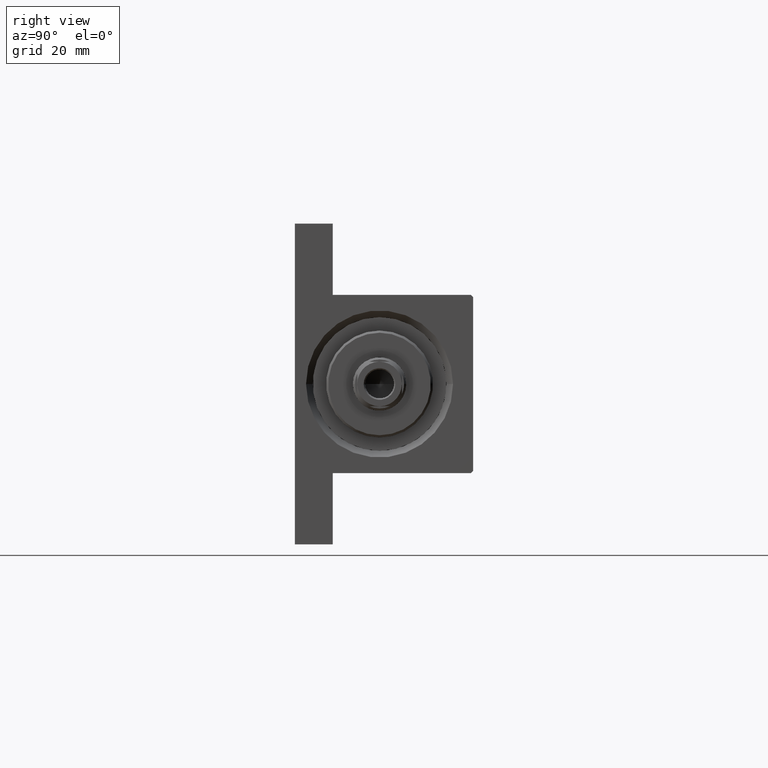
[diagram: clean part render]
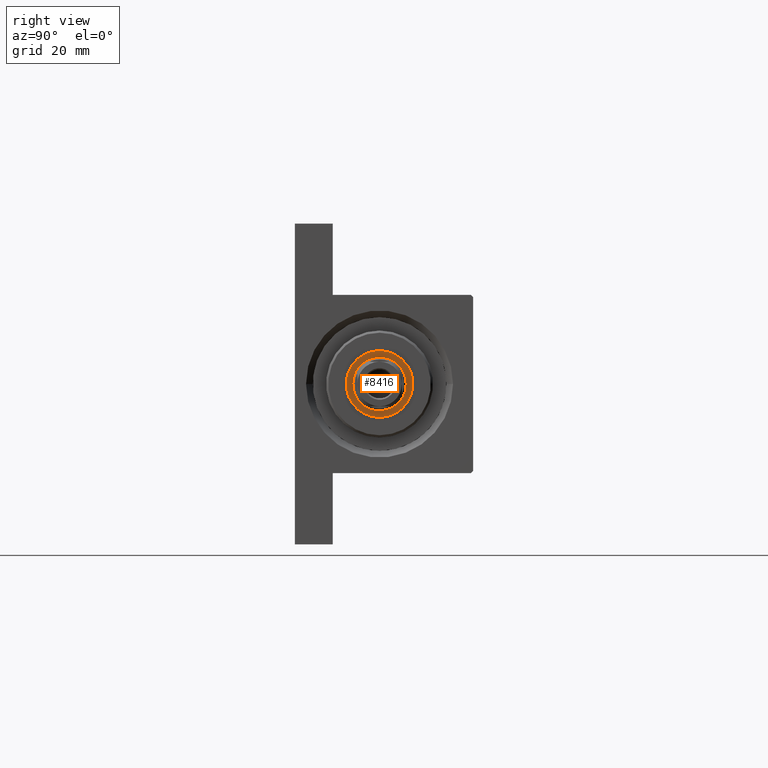
[diagram: same view with one face highlighted and labeled with its STEP entity id]
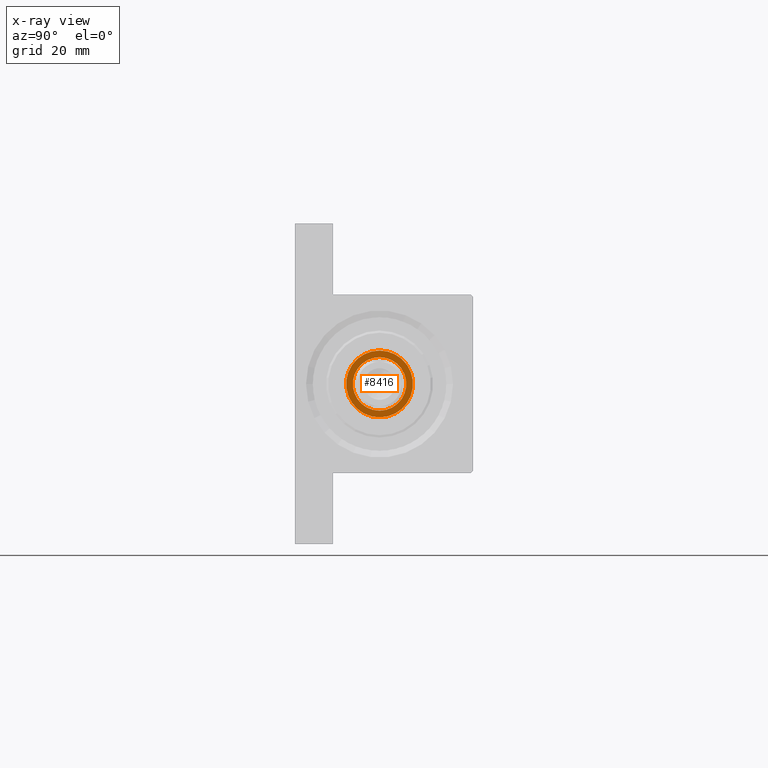
[diagram: x-ray of the same camera — body ghosted, the highlighted face saturated]
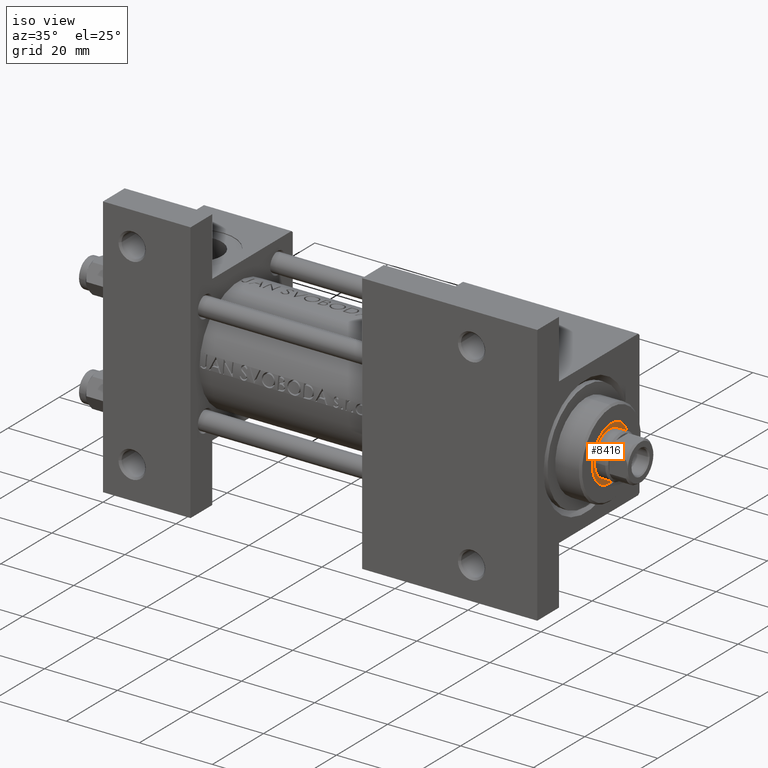
[diagram: same view with one face highlighted and labeled with its STEP entity id]
A machine part, right view. The second image highlights one B-rep face of the part: STEP entity #8416.
The next image is the same camera in x-ray: the body ghosted, the highlighted face saturated — about 0% of this face is hidden behind the body in this view.
A second angle (iso view) of the same face is appended — the face is thin or edge-on in the first view.
In plain terms, the highlighted planar face has unit normal (1, 0, 0).
Its self-contained STEP definition (entity closure, byte-faithful):
#2462 = VERTEX_POINT ( 'NONE', #7049 ) ;
#2465 = ORIENTED_EDGE ( 'NONE', *, *, #23734, .T. ) ;
#3671 = DIRECTION ( 'NONE',  ( 1.000000000000000000, 0.000000000000000000, -0.000000000000000000 ) ) ;
#6350 = VERTEX_POINT ( 'NONE', #16225 ) ;
#7049 = CARTESIAN_POINT ( 'NONE',  ( -6.000000000000000888, 7.347880794884119736E-16, 35.20000000000000284 ) ) ;
#7266 = EDGE_LOOP ( 'NONE', ( #22468, #24415 ) ) ;
#8416 = ADVANCED_FACE ( 'NONE', ( #44502, #18837 ), #36352, .T. ) ;
#8947 = AXIS2_PLACEMENT_3D ( 'NONE', #42360, #37576, #20292 ) ;
#9835 = DIRECTION ( 'NONE',  ( 1.000000000000000000, 0.000000000000000000, 0.000000000000000000 ) ) ;
#10344 = AXIS2_PLACEMENT_3D ( 'NONE', #14106, #29473, #44099 ) ;
#11385 = CIRCLE ( 'NONE', #19076, 6.000000000000000888 ) ;
#11609 = CARTESIAN_POINT ( 'NONE',  ( 0.000000000000000000, 0.000000000000000000, 35.20000000000000284 ) ) ;
#12105 = DIRECTION ( 'NONE',  ( 1.000000000000000000, 0.000000000000000000, 0.000000000000000000 ) ) ;
#14106 = CARTESIAN_POINT ( 'NONE',  ( 0.000000000000000000, 0.000000000000000000, 35.20000000000000284 ) ) ;
#15223 = DIRECTION ( 'NONE',  ( 0.000000000000000000, 0.000000000000000000, 1.000000000000000000 ) ) ;
#16225 = CARTESIAN_POINT ( 'NONE',  ( -7.500000000000000888, 9.184850993605149917E-16, 35.20000000000000284 ) ) ;
#18472 = CARTESIAN_POINT ( 'NONE',  ( 6.000000000000000888, 0.000000000000000000, 35.20000000000000284 ) ) ;
#18837 = FACE_BOUND ( 'NONE', #7266, .T. ) ;
#19076 = AXIS2_PLACEMENT_3D ( 'NONE', #35999, #32407, #9835 ) ;
#20292 = DIRECTION ( 'NONE',  ( 1.000000000000000000, 0.000000000000000000, 0.000000000000000000 ) ) ;
#20336 = CIRCLE ( 'NONE', #10344, 6.000000000000000888 ) ;
#20584 = VERTEX_POINT ( 'NONE', #18472 ) ;
#21869 = EDGE_CURVE ( 'NONE', #20584, #2462, #20336, .T. ) ;
#22468 = ORIENTED_EDGE ( 'NONE', *, *, #21869, .T. ) ;
#22952 = CIRCLE ( 'NONE', #25274, 7.500000000000000888 ) ;
#23734 = EDGE_CURVE ( 'NONE', #34980, #6350, #33504, .T. ) ;
#24415 = ORIENTED_EDGE ( 'NONE', *, *, #26432, .T. ) ;
#25274 = AXIS2_PLACEMENT_3D ( 'NONE', #33961, #33727, #12105 ) ;
#26432 = EDGE_CURVE ( 'NONE', #2462, #20584, #11385, .T. ) ;
#28672 = CARTESIAN_POINT ( 'NONE',  ( 7.500000000000000888, 0.000000000000000000, 35.20000000000000284 ) ) ;
#29021 = EDGE_CURVE ( 'NONE', #6350, #34980, #22952, .T. ) ;
#29473 = DIRECTION ( 'NONE',  ( -0.000000000000000000, -0.000000000000000000, -1.000000000000000000 ) ) ;
#31322 = ORIENTED_EDGE ( 'NONE', *, *, #29021, .T. ) ;
#32407 = DIRECTION ( 'NONE',  ( -0.000000000000000000, -0.000000000000000000, -1.000000000000000000 ) ) ;
#33504 = CIRCLE ( 'NONE', #8947, 7.500000000000000888 ) ;
#33727 = DIRECTION ( 'NONE',  ( 0.000000000000000000, 0.000000000000000000, 1.000000000000000000 ) ) ;
#33961 = CARTESIAN_POINT ( 'NONE',  ( 0.000000000000000000, 0.000000000000000000, 35.20000000000000284 ) ) ;
#34980 = VERTEX_POINT ( 'NONE', #28672 ) ;
#35999 = CARTESIAN_POINT ( 'NONE',  ( 0.000000000000000000, 0.000000000000000000, 35.20000000000000284 ) ) ;
#36352 = PLANE ( 'NONE',  #36847 ) ;
#36847 = AXIS2_PLACEMENT_3D ( 'NONE', #11609, #15223, #3671 ) ;
#37365 = EDGE_LOOP ( 'NONE', ( #2465, #31322 ) ) ;
#37576 = DIRECTION ( 'NONE',  ( 0.000000000000000000, 0.000000000000000000, 1.000000000000000000 ) ) ;
#42360 = CARTESIAN_POINT ( 'NONE',  ( 0.000000000000000000, 0.000000000000000000, 35.20000000000000284 ) ) ;
#44099 = DIRECTION ( 'NONE',  ( 1.000000000000000000, 0.000000000000000000, 0.000000000000000000 ) ) ;
#44502 = FACE_OUTER_BOUND ( 'NONE', #37365, .T. ) ;